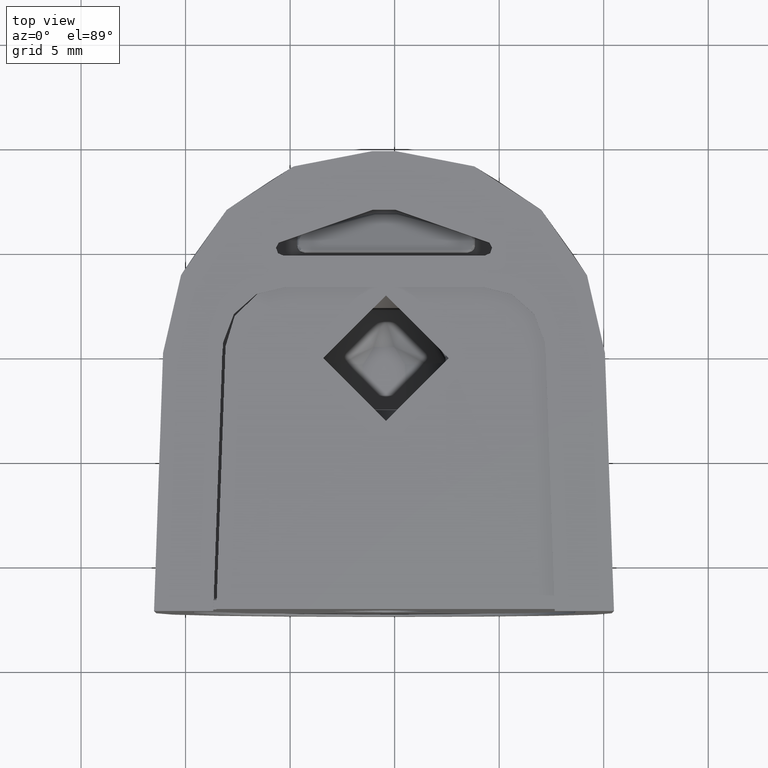
[diagram: clean part render]
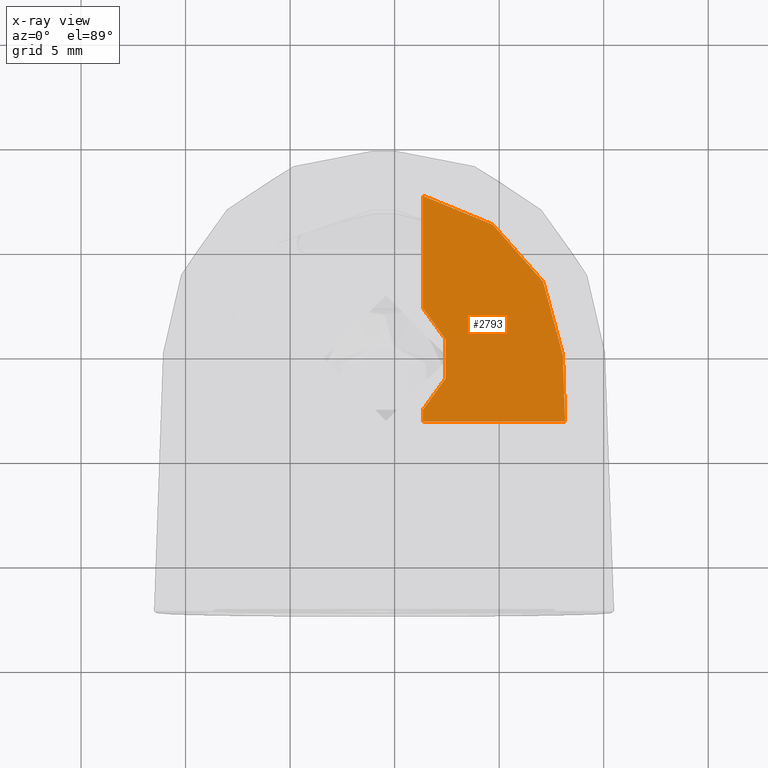
[diagram: x-ray — body ghosted, one internal face saturated and labeled with its STEP entity id]
A machine part, top view, then the same camera in x-ray: the body is ghosted and one INTERNAL B-rep face — a face not visible from any outside direction — is saturated and labeled: STEP entity #2793.
In plain terms, the highlighted planar face has unit normal (0, 0, 1).
Its self-contained STEP definition (entity closure, byte-faithful):
#114=B_SPLINE_CURVE_WITH_KNOTS('',3,(#5059,#5060,#5061,#5062,#5063),
 .UNSPECIFIED.,.F.,.F.,(4,1,4),(0.,0.5,1.),.UNSPECIFIED.);
#226=CIRCLE('',#3052,3.);
#228=CIRCLE('',#3057,7.986870619293);
#436=FACE_OUTER_BOUND('',#607,.T.);
#607=EDGE_LOOP('',(#2380,#2381,#2382,#2383,#2384,#2385,#2386));
#843=LINE('',#5054,#1055);
#844=LINE('',#5055,#1056);
#845=LINE('',#5057,#1057);
#846=LINE('',#5066,#1058);
#1055=VECTOR('',#3718,6.8025062471443);
#1056=VECTOR('',#3719,0.575515518713001);
#1057=VECTOR('',#3720,5.3645963538371);
#1058=VECTOR('',#3723,3.20573398691014);
#1316=VERTEX_POINT('',#5016);
#1317=VERTEX_POINT('',#5027);
#1323=VERTEX_POINT('',#5052);
#1324=VERTEX_POINT('',#5053);
#1325=VERTEX_POINT('',#5056);
#1326=VERTEX_POINT('',#5058);
#1327=VERTEX_POINT('',#5064);
#1680=EDGE_CURVE('',#1316,#1317,#226,.T.);
#1688=EDGE_CURVE('',#1323,#1324,#843,.T.);
#1689=EDGE_CURVE('',#1324,#1317,#844,.T.);
#1690=EDGE_CURVE('',#1316,#1325,#845,.T.);
#1691=EDGE_CURVE('',#1325,#1326,#114,.T.);
#1692=EDGE_CURVE('',#1326,#1327,#228,.T.);
#1693=EDGE_CURVE('',#1327,#1323,#846,.T.);
#2380=ORIENTED_EDGE('',*,*,#1688,.T.);
#2381=ORIENTED_EDGE('',*,*,#1689,.T.);
#2382=ORIENTED_EDGE('',*,*,#1680,.F.);
#2383=ORIENTED_EDGE('',*,*,#1690,.T.);
#2384=ORIENTED_EDGE('',*,*,#1691,.T.);
#2385=ORIENTED_EDGE('',*,*,#1692,.T.);
#2386=ORIENTED_EDGE('',*,*,#1693,.T.);
#2672=PLANE('',#3056);
#2793=ADVANCED_FACE('',(#436),#2672,.F.);
#3052=AXIS2_PLACEMENT_3D('',#5028,#3704,#3705);
#3056=AXIS2_PLACEMENT_3D('',#5051,#3716,#3717);
#3057=AXIS2_PLACEMENT_3D('',#5065,#3721,#3722);
#3704=DIRECTION('center_axis',(0.,0.,-1.));
#3705=DIRECTION('ref_axis',(1.,0.,0.));
#3716=DIRECTION('center_axis',(0.,0.,1.));
#3717=DIRECTION('ref_axis',(0.,1.,0.));
#3718=DIRECTION('',(-1.,1.096757350921E-14,5.366509315972E-9));
#3719=DIRECTION('',(0.,1.,0.));
#3720=DIRECTION('',(-2.42293787949092E-7,0.999999999999969,-5.33241279663384E-8));
#3721=DIRECTION('center_axis',(0.,0.,-1.));
#3722=DIRECTION('ref_axis',(0.161877418297504,0.986810874203023,0.));
#3723=DIRECTION('',(0.0349060570915002,-0.999390597903705,-1.13943288420301E-8));
#5016=CARTESIAN_POINT('',(1.766882848408,14.42448448129,-2.525));
#5027=CARTESIAN_POINT('',(1.766882848408,9.575515518713,-2.525));
#5028=CARTESIAN_POINT('Origin',(0.,12.,-2.525));
#5051=CARTESIAN_POINT('Origin',(0.,0.,-2.525));
#5052=CARTESIAN_POINT('',(8.5693890955523,8.99999990690347,-2.5250000547587));
#5053=CARTESIAN_POINT('',(1.766882848408,9.,-2.525));
#5054=CARTESIAN_POINT('',(8.569389090302,9.,-2.525000036506));
#5055=CARTESIAN_POINT('',(1.766882848408,9.,-2.525));
#5056=CARTESIAN_POINT('',(1.76688145203278,19.7890808351269,-2.52499995519651));
#5057=CARTESIAN_POINT('',(1.766882848408,14.42448448129,-2.525));
#5058=CARTESIAN_POINT('',(1.768375794228,19.80653077797,-2.525));
#5059=CARTESIAN_POINT('Ctrl Pts',(1.76688154860013,19.7890808351267,-2.525000286062));
#5060=CARTESIAN_POINT('Ctrl Pts',(1.76688155429,19.79200661785,-2.525000286062));
#5061=CARTESIAN_POINT('Ctrl Pts',(1.767121722782,19.79784171845,-2.524999856969));
#5062=CARTESIAN_POINT('Ctrl Pts',(1.767872138193,19.80364050558,-2.525));
#5063=CARTESIAN_POINT('Ctrl Pts',(1.768375794228,19.80653077797,-2.525));
#5064=CARTESIAN_POINT('',(8.45748755518387,12.2037802427096,-2.52499999996886));
#5065=CARTESIAN_POINT('Origin',(0.4754817981004,11.925,-2.525));
#5066=CARTESIAN_POINT('',(8.457489559989,12.20378031273,-2.524999999979));